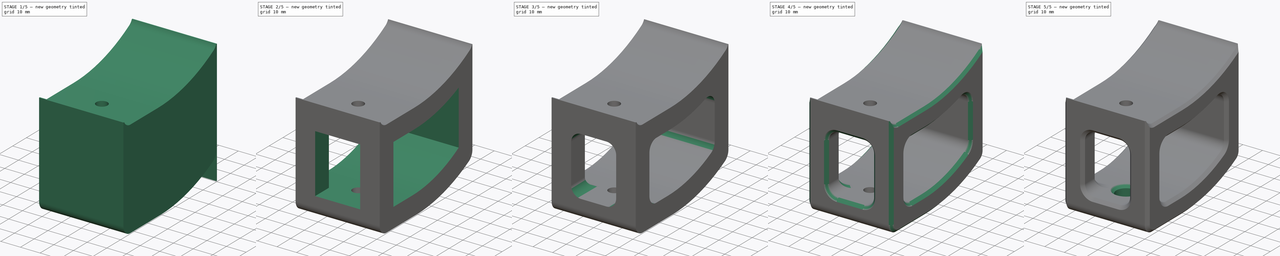
[diagram: build sequence overview — one tinted view per stage of 5, left to right]
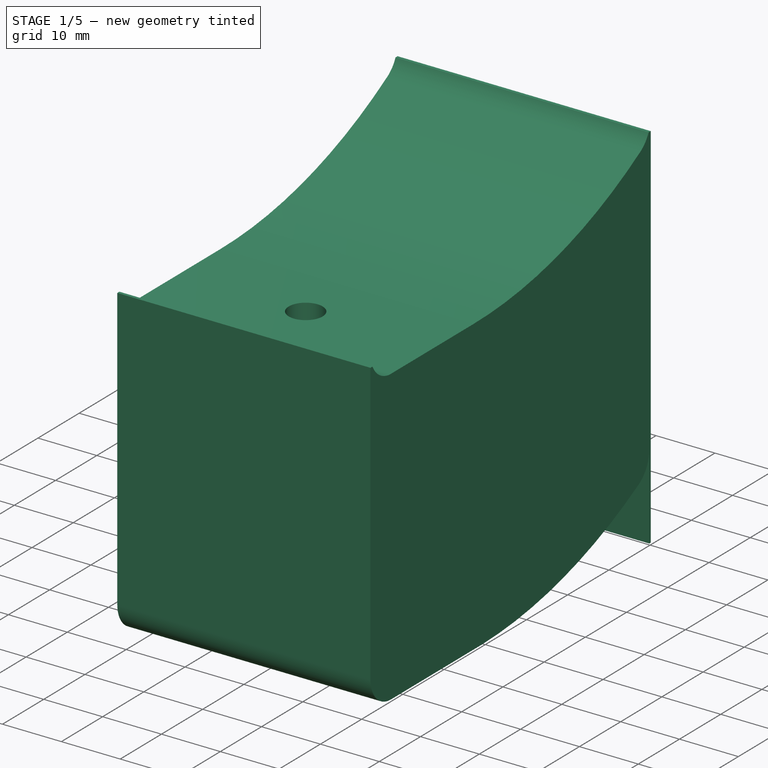
[diagram: stage 1 of 5 — iso view after this stage's code; geometry added in this stage tinted green]
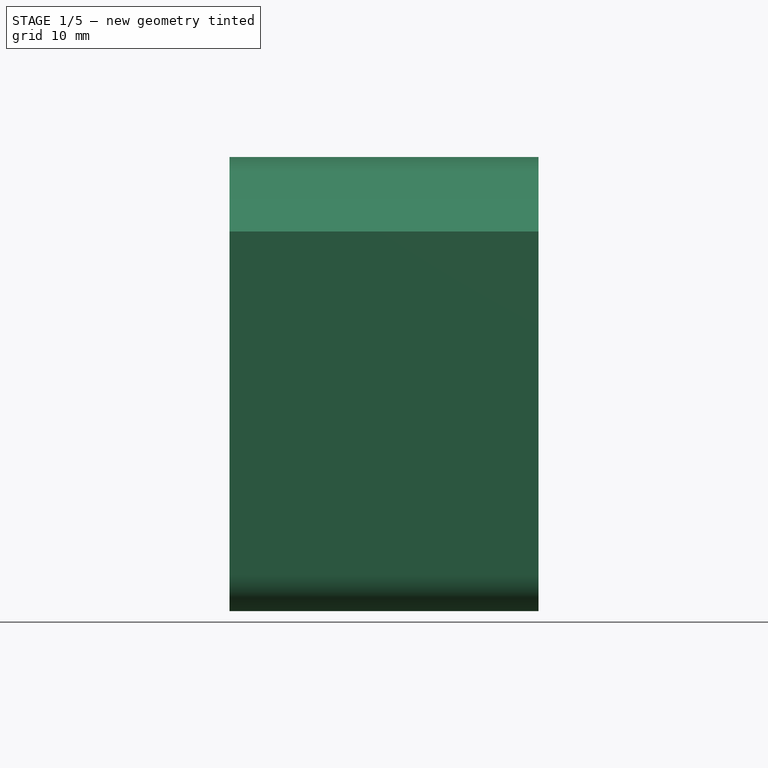
[diagram: stage 1 of 5 — front view after this stage's code; geometry added in this stage tinted green]
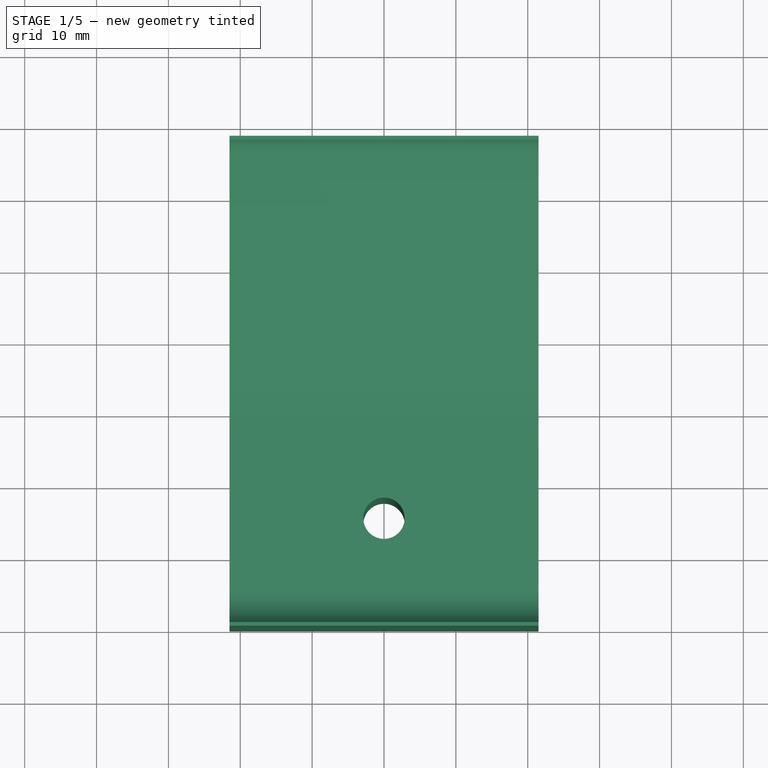
[diagram: stage 1 of 5 — top view after this stage's code; geometry added in this stage tinted green]
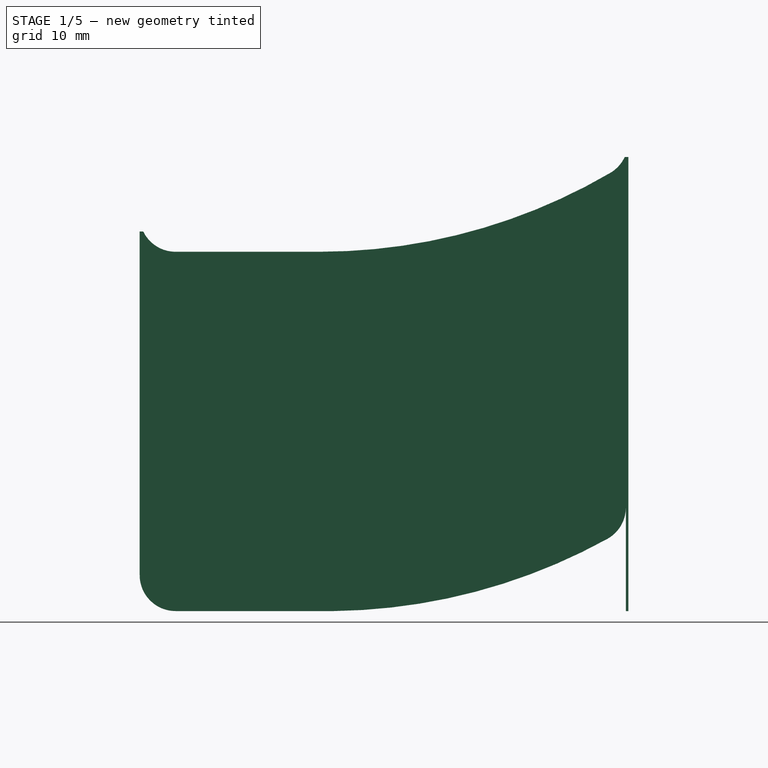
[diagram: stage 1 of 5 — right view after this stage's code; geometry added in this stage tinted green]
FCSTD DOCUMENT  (FreeCAD 0.20R29603 (Git))
Label: back-leg-extension
License: Other
objects: Sketcher::SketchObject×8, PartDesign::Pocket×8, PartDesign::Chamfer×4, PartDesign::Plane×2, PartDesign::Fillet×2, PartDesign::Hole×2, PartDesign::Pad×1, PartDesign::Body×1
note: 45 computed .brp shape members not serialized (recipe doc carries the construction recipe); baked Part::Feature solids carry a one-line shape summary decoded from their .brp

FEATURE [Sketcher::SketchObject] Sketch
  FullyConstrained = true
  MapMode = 5
  Support = -> [XY_Plane]
  sketch-geometry (4):
    g0: LineSegment StartX=-21.5 StartY=0 StartZ=0 EndX=21.5 EndY=0 EndZ=0
    g1: LineSegment StartX=21.5 StartY=0 StartZ=0 EndX=21.5 EndY=68 EndZ=0
    g2: LineSegment StartX=21.5 StartY=68 StartZ=0 EndX=-21.5 EndY=68 EndZ=0
    g3: LineSegment StartX=-21.5 StartY=68 StartZ=0 EndX=-21.5 EndY=0 EndZ=0
  constraints (11):
    c: Coincident(g0,g1)
    c: Coincident(g1,g2)
    c: Coincident(g2,g3)
    c: Coincident(g3,g0)
    c: Horizontal(g2)
    c: Vertical(g1)
    c: Vertical(g3)
    c: PointOnObject(g0,g-1)
    c: Symmetric(g0,g0,g-2)
    c: DistanceX(g2,g2) = 43
    c: DistanceY(g3,g3) = 68
FEATURE [Sketcher::SketchObject] Sketch001
  ExternalGeometry = -> [Sketch]
  FullyConstrained = true
  MapMode = 5
  Placement = pos=(0,0,0) rot=(0.57735,0.57735,0.57735;2.0944rad)
  Support = -> [YZ_Plane]
  sketch-geometry (16):
    g0: LineSegment StartX=0 StartY=0 StartZ=0 EndX=25.0002 EndY=4.7e-15 EndZ=0
    g1: LineSegment StartX=68 StartY=1.29e-14 StartZ=0 EndX=68 EndY=13.197 EndZ=0
    g2: LineSegment StartX=68 StartY=1.29e-14 StartZ=0 EndX=68 EndY=-50 EndZ=0
    g3: LineSegment StartX=68 StartY=-50 StartZ=0 EndX=0 EndY=-50 EndZ=0
    g4: LineSegment StartX=0 StartY=-50 StartZ=0 EndX=0 EndY=2.821 EndZ=0
    g5: LineSegment StartX=5.00022 StartY=9e-16 StartZ=0 EndX=25.0002 EndY=0 EndZ=0
    g6: ArcOfCircle CenterX=25.0002 CenterY=80.1544 CenterZ=0 NormalX=0 NormalY=0 NormalZ=1 AngleXU=0 Radius=80.1544 StartAngle=4.71239 EndAngle=5.24187
    g7: ArcOfCircle CenterX=62.9596 CenterY=15.2909 CenterZ=0 NormalX=0 NormalY=0 NormalZ=1 AngleXU=0 Radius=5 StartAngle=5.24187 EndAngle=5.85108
    g8: ArcOfCircle CenterX=5.00022 CenterY=5 CenterZ=0 NormalX=0 NormalY=0 NormalZ=1 AngleXU=0 Radius=5 StartAngle=3.59252 EndAngle=4.71239
    g9: LineSegment StartX=5.00022 StartY=9e-16 StartZ=0 EndX=5.00022 EndY=5 EndZ=0
    g10: LineSegment StartX=0 StartY=5 StartZ=0 EndX=5.00022 EndY=5 EndZ=0
    g11: LineSegment StartX=68 StartY=15.3 StartZ=0 EndX=65.485 EndY=15.3 EndZ=0
    g12: LineSegment StartX=65.485 StartY=10.9756 StartZ=0 EndX=65.485 EndY=15.3 EndZ=0
    g13: LineSegment StartX=67.5 StartY=13.197 StartZ=0 EndX=68 EndY=13.197 EndZ=0
    g14: LineSegment StartX=0.5 StartY=2.821 StartZ=0 EndX=0 EndY=2.821 EndZ=0
    g15: LineSegment StartX=68 StartY=13.197 StartZ=0 EndX=68 EndY=15.3 EndZ=0
  constraints (47):
    c: Coincident(g0,g-1)
    c: Coincident(g1,g-3)
    c: Vertical(g1)
    c: Coincident(g2,g-3)
    c: Vertical(g2)
    c: Coincident(g3,g2)
    c: PointOnObject(g3,g-2)
    c: Horizontal(g3)
    c: Coincident(g4,g3)
    c: PointOnObject(g10,g-2)
    c: PointOnObject(g5,g0)
    c: PointOnObject(g5,g0)
    c: Coincident(g6,g5)
    c: Coincident(g8,g5)
    c: Diameter(g7) = 10
    c: Diameter(g8) = 10
    c: Coincident(g9,g5)
    c: Coincident(g9,g8)
    c: Vertical(g9)
    c: Coincident(g10,g8)
    c: Horizontal(g10)
    c: Horizontal(g11)
    c: Coincident(g12,g6)
    c: Vertical(g12)
    c: Coincident(g11,g12)
    c: DistanceY(g1,g11) = 15.3
    c: PointOnObject(g0,g6)
    c: Tangent(g0,g-3)
    c: DistanceX(g5,g0) = 20
    c: Tangent(g7,g6) = -1.5708
    c: Tangent(g-3,g6)
    c: DistanceY(g2,g2) = 50
    c: Horizontal(g13)
    c: Horizontal(g14)
    c: Equal(g14,g13)
    c: Distance(g13) = 0.5
    c: Coincident(g8,g14)
    c: Coincident(g4,g14)
    c: Coincident(g7,g13)
    c: Coincident(g1,g13)
    c: Coincident(g15,g1)
    c: Coincident(g15,g11)
    c: Vertical(g15)
    c: DistanceY(g1,g11) = 2.103
    c: DistanceY(g4,g10) = 2.179
    c: Vertical(g4)
    c: DistanceX(g11,g11) = 2.515
FEATURE [PartDesign::Pad] Pad
  Direction = (1,-2e-16,3e-16)
  Length = 21.5
  Length2 = 21.5
  Placement = pos=(0,0,0) rot=(0.57735,0.57735,0.57735;2.0944rad)
  Profile = -> Sketch001
  ReferenceAxis = -> Sketch001 [N_Axis]
  Type = 4
FEATURE [Sketcher::SketchObject] Sketch002
  FullyConstrained = true
  MapMode = 5
  Placement = pos=(0,0,1e-15) rot=(0,0,-1;1.5708rad)
  sketch-geometry (1):
    g0: Circle CenterX=-15 CenterY=0 CenterZ=0 NormalX=0 NormalY=0 NormalZ=1 AngleXU=0 Radius=2.875
  constraints (3):
    c: PointOnObject(g0,g-1)
    c: DistanceX(g0,g-1) = 15
    c: Diameter(g0) = 5.75
FEATURE [PartDesign::Pocket] Pocket
  BaseFeature = -> Pad
  Direction = (3e-16,-5e-16,-1)
  Length = 5
  Length2 = 5
  Placement = pos=(0,0,0) rot=(0.57735,0.57735,0.57735;2.0944rad)
  Profile = -> Sketch002
  ReferenceAxis = -> Sketch002 [N_Axis]
  Type = 1
FEATURE [Sketcher::SketchObject] Sketch006
  AttachmentOffset = pos=(0,-50,0) rot=(0,0,1;0rad)
  FullyConstrained = false
  MapMode = 5
  Placement = pos=(1.11e-14,-1.11e-14,-50) rot=(0.57735,0.57735,0.57735;2.0944rad)
  Support = -> [YZ_Plane]
  sketch-geometry (13):
    g0: LineSegment StartX=0 StartY=0 StartZ=0 EndX=25 EndY=0 EndZ=0
    g1: LineSegment StartX=67.6541 StartY=4.95487e-07 StartZ=0 EndX=67.6541 EndY=-50 EndZ=0
    g2: LineSegment StartX=67.6541 StartY=-50 StartZ=0 EndX=0 EndY=-50 EndZ=0
    g3: LineSegment StartX=0 StartY=-50 StartZ=0 EndX=0 EndY=2.821 EndZ=0
    g4: LineSegment StartX=5 StartY=0 StartZ=0 EndX=25 EndY=0 EndZ=0
    g5: ArcOfCircle CenterX=26.0308 CenterY=80.8839 CenterZ=0 NormalX=0 NormalY=0 NormalZ=1 AngleXU=0 Radius=80.8905 StartAngle=4.69965 EndAngle=5.21599
    g6: ArcOfCircle CenterX=62.6541 CenterY=14.4151 CenterZ=0 NormalX=0 NormalY=0 NormalZ=1 AngleXU=0 Radius=5 StartAngle=5.21599 EndAngle=6.28319
    g7: ArcOfCircle CenterX=5 CenterY=5 CenterZ=0 NormalX=0 NormalY=0 NormalZ=1 AngleXU=0 Radius=5 StartAngle=3.14159 EndAngle=4.71239
    g8: LineSegment StartX=5 StartY=0 StartZ=0 EndX=5 EndY=5 EndZ=0
    g9: LineSegment StartX=0 StartY=5 StartZ=0 EndX=5 EndY=5 EndZ=0
    g10: LineSegment StartX=67.6541 StartY=14.4151 StartZ=0 EndX=67.6541 EndY=4.95487e-07 EndZ=0
    g11: LineSegment StartX=0 StartY=2.821 StartZ=0 EndX=0 EndY=5 EndZ=0
    g12: LineSegment StartX=5 StartY=0 StartZ=0 EndX=25 EndY=0 EndZ=0
  constraints (35):
    c: Coincident(g0,g-1)
    c: Vertical(g1)
    c: Coincident(g2,g1)
    c: PointOnObject(g2,g-2)
    c: Horizontal(g2)
    c: Coincident(g3,g2)
    c: PointOnObject(g9,g-2)
    c: PointOnObject(g4,g0)
    c: PointOnObject(g4,g0)
    c: Coincident(g5,g4)
    c: Coincident(g7,g4)
    c: Diameter(g6) = 10
    c: Diameter(g7) = 10
    c: Coincident(g8,g4)
    c: Coincident(g8,g7)
    c: Vertical(g8)
    c: Coincident(g9,g7)
    c: Horizontal(g9)
    c: DistanceX(g4,g0) = 20
    c: Tangent(g6,g5) = -1.5708
    c: DistanceY(g1,g1) = 50
    c: DistanceY(g3,g9) = 2.179
    c: Vertical(g3)
    c: Coincident(g7,g9)
    c: Coincident(g10,g6)
    c: Coincident(g10,g1)
    c: Vertical(g10)
    c: Tangent(g10,g6)
    c: Horizontal(g4)
    c: Coincident(g0,g4)
    c: Horizontal(g0)
    c: Coincident(g11,g3)
    c: Coincident(g11,g7)
    c: Coincident(g12,g7)
    c: Coincident(g12,g5)
FEATURE [PartDesign::Pocket] Pocket002
  BaseFeature = -> Pocket
  Direction = (-1,2e-16,-3e-16)
  Length = 5
  Length2 = 5
  Midplane = true
  Placement = pos=(0,0,0) rot=(0.57735,0.57735,0.57735;2.0944rad)
  Profile = -> Sketch006
  ReferenceAxis = -> Sketch006 [N_Axis]
  Type = 1
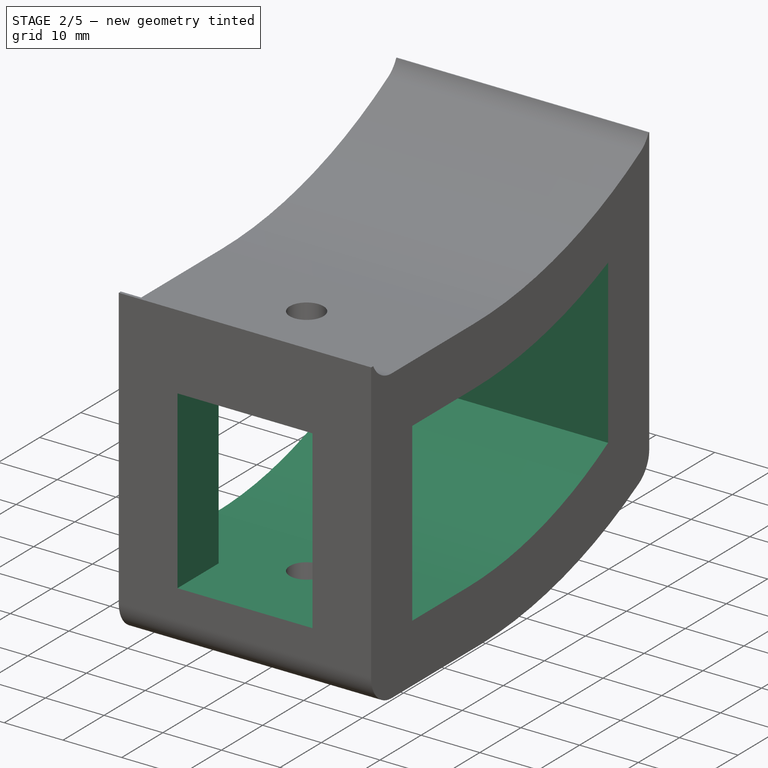
[diagram: stage 2 of 5 — iso view after this stage's code; geometry added in this stage tinted green]
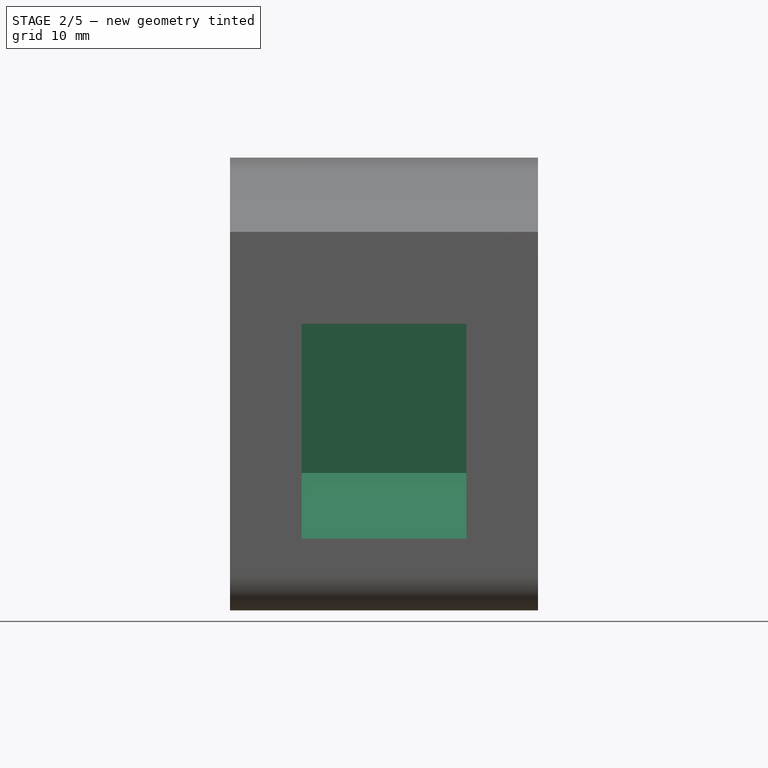
[diagram: stage 2 of 5 — front view after this stage's code; geometry added in this stage tinted green]
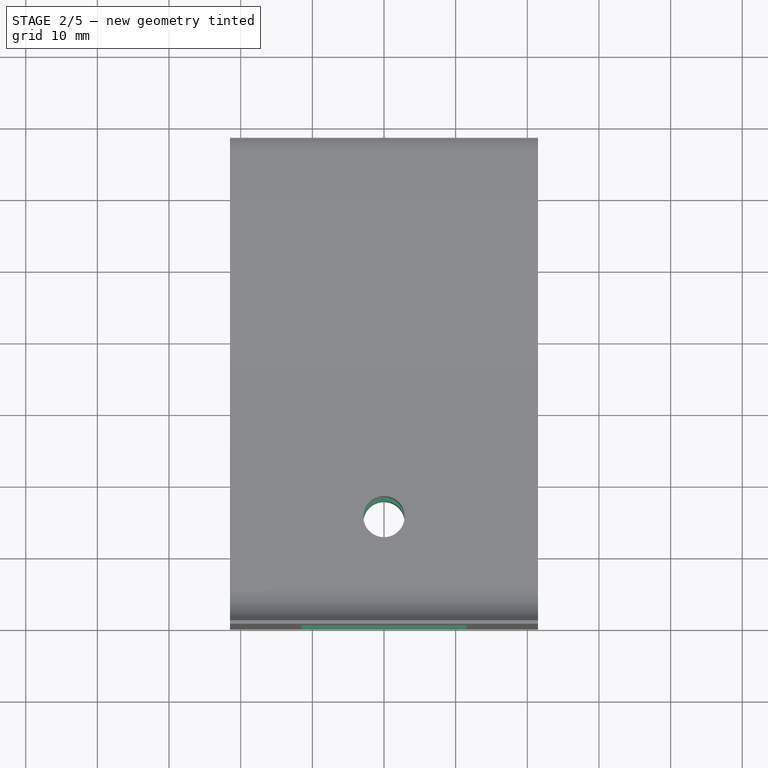
[diagram: stage 2 of 5 — top view after this stage's code; geometry added in this stage tinted green]
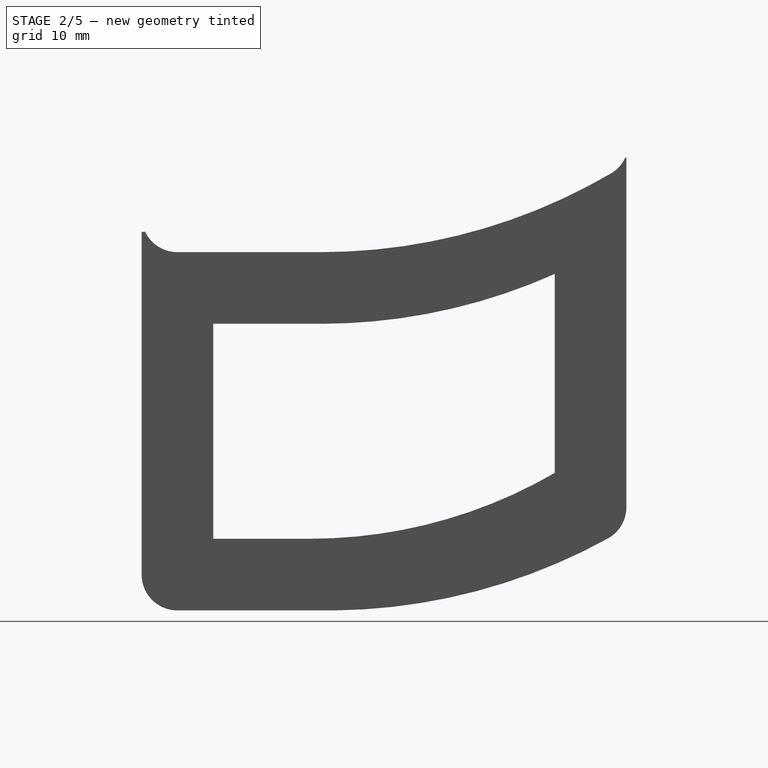
[diagram: stage 2 of 5 — right view after this stage's code; geometry added in this stage tinted green]
FEATURE [PartDesign::Pocket] Pocket003
  BaseFeature = -> Pocket002
  Direction = (4e-16,1,-2e-16)
  Length = 5
  Length2 = 5
  Placement = pos=(0,0,0) rot=(0.57735,0.57735,0.57735;2.0944rad)
  Profile = -> Pocket002 [Face14]
  Type = 0
FEATURE [PartDesign::Pocket] Pocket004
  BaseFeature = -> Pocket003
  Direction = (-3e-16,4e-16,1)
  Length = 5
  Length2 = 5
  Placement = pos=(0,0,0) rot=(0.57735,0.57735,0.57735;2.0944rad)
  Profile = -> Pocket003 [Face13]
  Type = 1
FEATURE [Sketcher::SketchObject] Sketch007
  FullyConstrained = false
  MapMode = 5
  Placement = pos=(21.5,-2.9e-14,5e-15) rot=(0.57735,0.57735,0.57735;2.0944rad)
  sketch-geometry (7):
    g0: LineSegment StartX=10 StartY=-10 StartZ=0 EndX=10 EndY=-40 EndZ=0
    g1: LineSegment StartX=57.6541 StartY=-3.04704 StartZ=0 EndX=57.6541 EndY=-30.8147 EndZ=0
    g2: LineSegment StartX=10 StartY=-40 StartZ=0 EndX=23.4772 EndY=-40 EndZ=0
    g3: LineSegment StartX=10 StartY=-10 StartZ=0 EndX=25.0002 EndY=-10 EndZ=0
    g4: ArcOfCircle CenterX=25.0002 CenterY=70.1544 CenterZ=0 NormalX=0 NormalY=0 NormalZ=1 AngleXU=0 Radius=80.1544 StartAngle=4.71239 EndAngle=5.13198
    g5: ArcOfCircle CenterX=23.4772 CenterY=28.1757 CenterZ=0 NormalX=0 NormalY=0 NormalZ=1 AngleXU=0 Radius=68.1757 StartAngle=4.71239 EndAngle=5.2375
    g6: GeomPoint X=57.6541 Y=6.95296 Z=0
  constraints (13):
    c: Vertical(g0)
    c: Vertical(g1)
    c: Coincident(g2,g0)
    c: Horizontal(g2)
    c: Coincident(g3,g0)
    c: Horizontal(g3)
    c: Coincident(g4,g1)
    c: Tangent(g4,g3) = -1.5708
    c: Coincident(g5,g1)
    c: Tangent(g5,g2) = -1.5708
    c: DistanceX(g-1,g0) = 10
    c: Vertical(g6,g1)
    c: DistanceY(g1,g6) = 10
FEATURE [PartDesign::Pocket] Pocket005
  BaseFeature = -> Pocket004
  Direction = (-1,1.2e-15,-1e-16)
  Length = 1.51
  Length2 = 5
  Placement = pos=(0,0,0) rot=(0.57735,0.57735,0.57735;2.0944rad)
  Profile = -> Sketch007
  ReferenceAxis = -> Sketch007 [N_Axis]
  Type = 1
FEATURE [PartDesign::Plane] DatumPlane
  Length = 87.2474
  MapMode = 5
  Placement = pos=(1.44e-14,10,1.1e-15) rot=(0.57735,0.57735,0.57735;4.18879rad)
  ResizeMode = 0
  Support = -> [Pocket005]
  Width = 62.2474
FEATURE [Sketcher::SketchObject] Sketch009
  ExternalGeometry = -> [Pocket005]
  FullyConstrained = true
  MapMode = 5
  Placement = pos=(1.44e-14,10,1.1e-15) rot=(0.57735,0.57735,0.57735;4.18879rad)
  Support = -> [DatumPlane]
  sketch-geometry (5):
    g0: LineSegment StartX=-10 StartY=-11.5 StartZ=0 EndX=-10 EndY=11.5 EndZ=0
    g1: LineSegment StartX=-10 StartY=11.5 StartZ=0 EndX=-40 EndY=11.5 EndZ=0
    g2: LineSegment StartX=-40 StartY=11.5 StartZ=0 EndX=-40 EndY=-11.5 EndZ=0
    g3: LineSegment StartX=-40 StartY=-11.5 StartZ=0 EndX=-10 EndY=-11.5 EndZ=0
    g4: GeomPoint X=-25 Y=0 Z=0
  constraints (13):
    c: Coincident(g0,g1)
    c: Coincident(g1,g2)
    c: Coincident(g2,g3)
    c: Coincident(g3,g0)
    c: Horizontal(g1)
    c: Horizontal(g3)
    c: Vertical(g0)
    c: Vertical(g2)
    c: Symmetric(g1,g0,g4)
    c: PointOnObject(g4,g-1)
    c: Distance(g0) = 23
    c: PointOnObject(g1,g-3)
    c: PointOnObject(g0,g-4)
FEATURE [PartDesign::Pocket] Pocket006
  BaseFeature = -> Pocket005
  Direction = (-1.3e-15,-1,0)
  Length = 5
  Length2 = 5
  Placement = pos=(0,0,0) rot=(0.57735,0.57735,0.57735;2.0944rad)
  Profile = -> Sketch009
  ReferenceAxis = -> Sketch009 [N_Axis]
  Type = 1
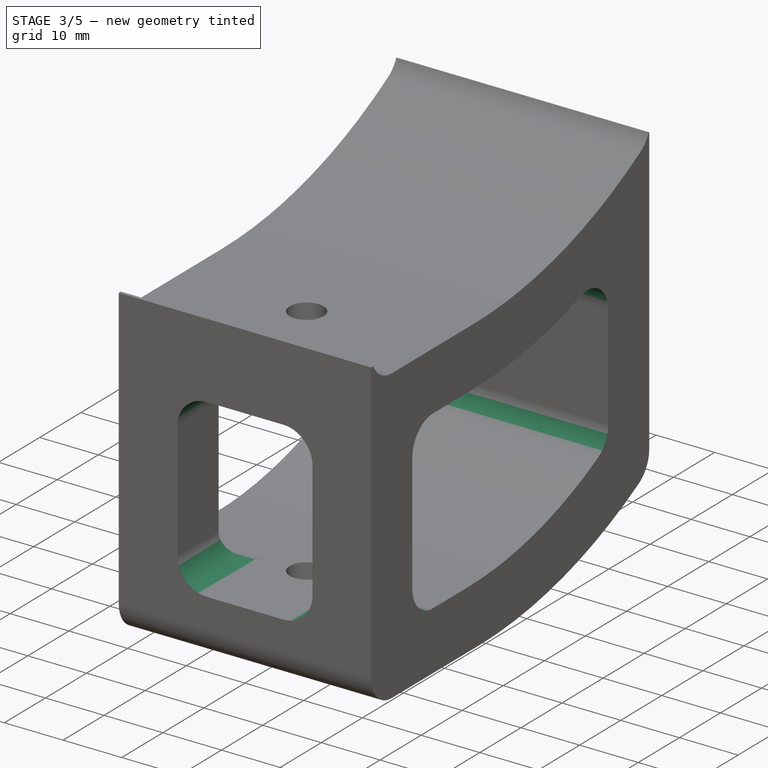
[diagram: stage 3 of 5 — iso view after this stage's code; geometry added in this stage tinted green]
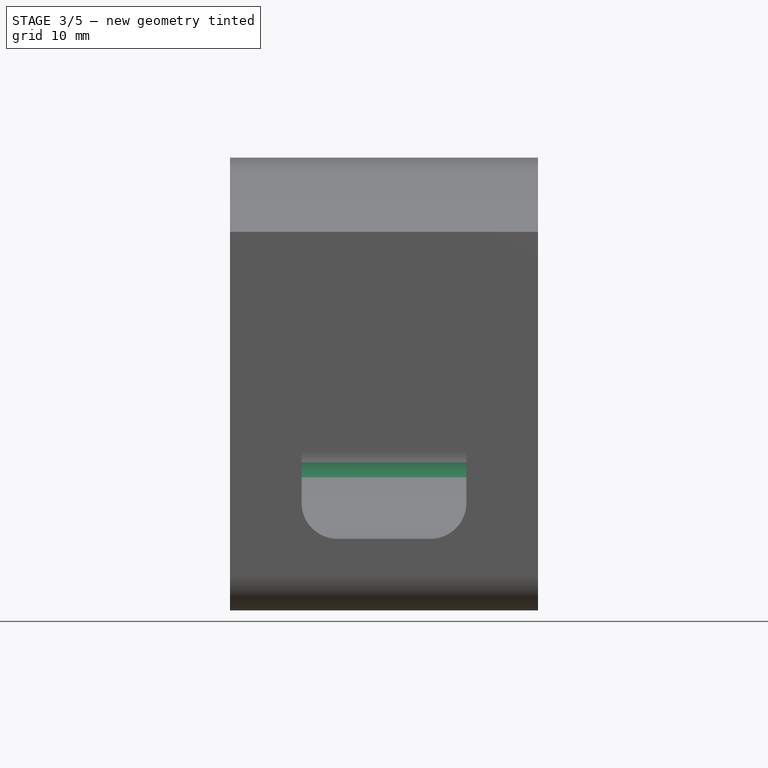
[diagram: stage 3 of 5 — front view after this stage's code; geometry added in this stage tinted green]
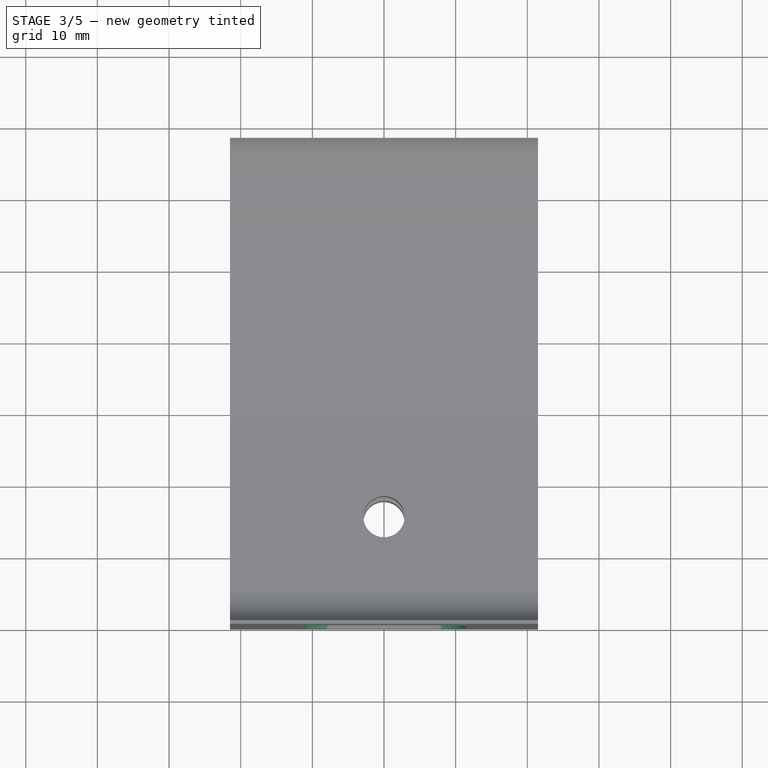
[diagram: stage 3 of 5 — top view after this stage's code; geometry added in this stage tinted green]
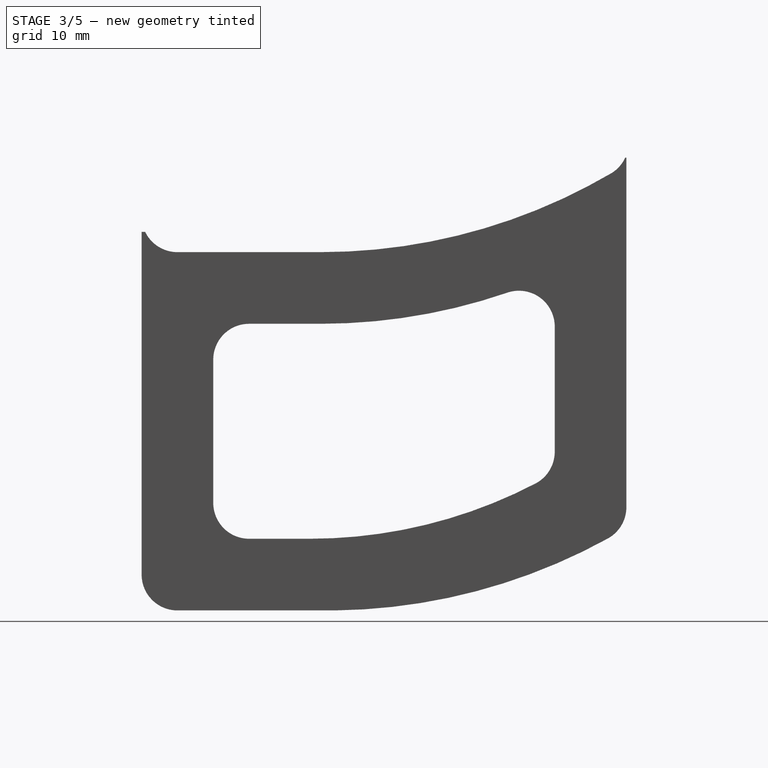
[diagram: stage 3 of 5 — right view after this stage's code; geometry added in this stage tinted green]
FEATURE [PartDesign::Plane] DatumPlane001
  Length = 106.267
  MapMode = 5
  Placement = pos=(1.4e-14,-2.2e-14,-50) rot=(0.707107,0.707107,0;3.14159rad)
  ResizeMode = 0
  Support = -> [Pocket006]
  Width = 63.6128
FEATURE [Sketcher::SketchObject] Sketch008
  FullyConstrained = false
  MapMode = 5
  Placement = pos=(1.4e-14,-2.2e-14,-50) rot=(0.707107,0.707107,0;3.14159rad)
  Support = -> [DatumPlane001]
  sketch-geometry (8):
    g0: LineSegment StartX=15 StartY=-7.8e-15 StartZ=0 EndX=15 EndY=-21.5 EndZ=0
    g1: LineSegment StartX=15 StartY=-7.8e-15 StartZ=0 EndX=15 EndY=21.5 EndZ=0
    g2: GeomPoint X=15 Y=13.91 Z=0
    g3: GeomPoint X=15 Y=-13.91 Z=0
    g4: Circle CenterX=15 CenterY=-13.91 CenterZ=0 NormalX=0 NormalY=0 NormalZ=1 AngleXU=0 Radius=5
    g5: Circle CenterX=15 CenterY=13.91 CenterZ=0 NormalX=0 NormalY=0 NormalZ=1 AngleXU=0 Radius=5
    g6: GeomPoint X=15 Y=-6.32 Z=0
    g7: LineSegment StartX=15 StartY=-13.91 StartZ=0 EndX=20 EndY=-13.91 EndZ=0
  constraints (15):
    c: Vertical(g0)
    c: Coincident(g1,g0)
    c: Vertical(g1)
    c: PointOnObject(g2,g1)
    c: Symmetric(g3,g2,g-1)
    c: DistanceY(g0,g1) = 21.5
    c: DistanceY(g3,g2) = 27.82
    c: Coincident(g4,g3)
    c: Coincident(g5,g2)
    c: Equal(g5,g4)
    c: Diameter(g5) = 10
    c: PointOnObject(g6,g0)
    c: Coincident(g7,g4)
    c: PointOnObject(g7,g4)
    c: Symmetric(g6,g0,g7)
FEATURE [PartDesign::Pocket] Pocket007
  BaseFeature = -> Pocket006
  Direction = (-5e-16,4e-16,1)
  Length = 0.75
  Length2 = 5
  Placement = pos=(0,0,0) rot=(0.57735,0.57735,0.57735;2.0944rad)
  Profile = -> Sketch008
  ReferenceAxis = -> Sketch008 [N_Axis]
  Type = 0
FEATURE [PartDesign::Fillet] Fillet
  Base = -> Pocket007 [Edge74,Edge73,Edge56,Edge54,Edge52,Edge51]
  BaseFeature = -> Pocket007
  Placement = pos=(0,0,0) rot=(0.57735,0.57735,0.57735;2.0944rad)
  Radius = 5
  SupportTransform = false
  UseAllEdges = false
FEATURE [PartDesign::Fillet] Fillet001
  Base = -> Fillet [Edge77,Edge72,Edge76,Edge73]
  BaseFeature = -> Fillet
  Placement = pos=(0,0,0) rot=(0.57735,0.57735,0.57735;2.0944rad)
  Radius = 5
  SupportTransform = false
  UseAllEdges = false
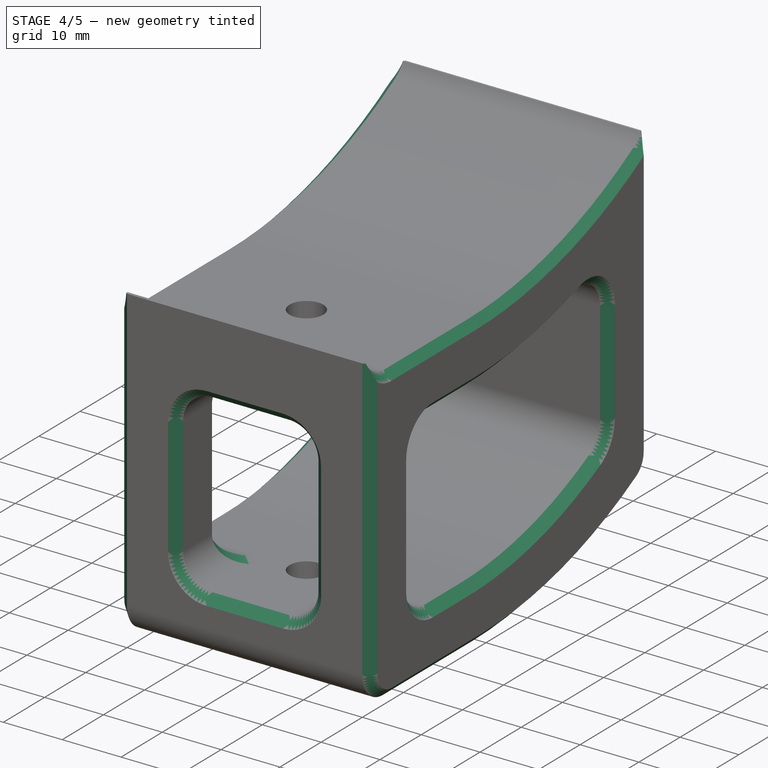
[diagram: stage 4 of 5 — iso view after this stage's code; geometry added in this stage tinted green]
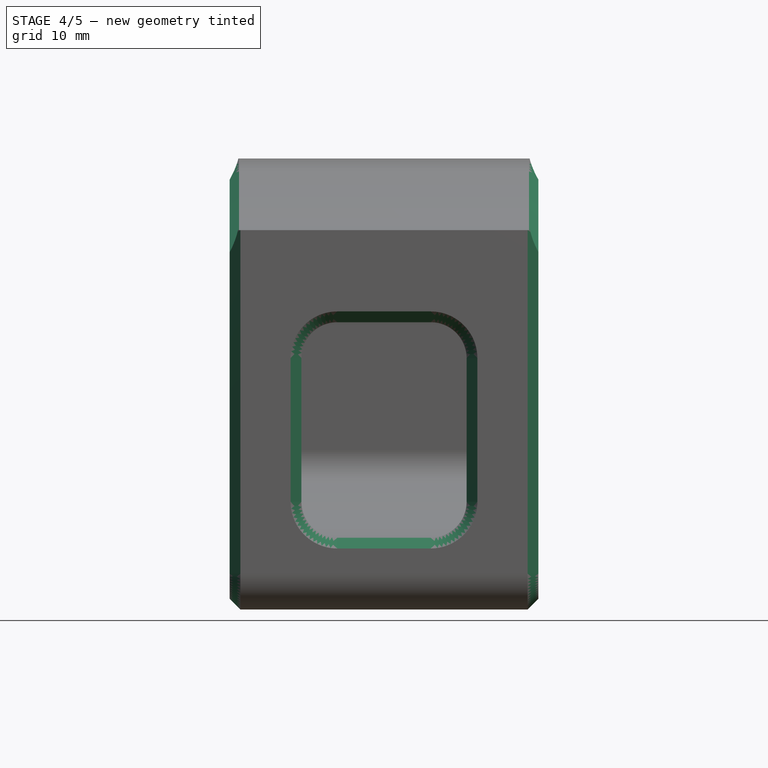
[diagram: stage 4 of 5 — front view after this stage's code; geometry added in this stage tinted green]
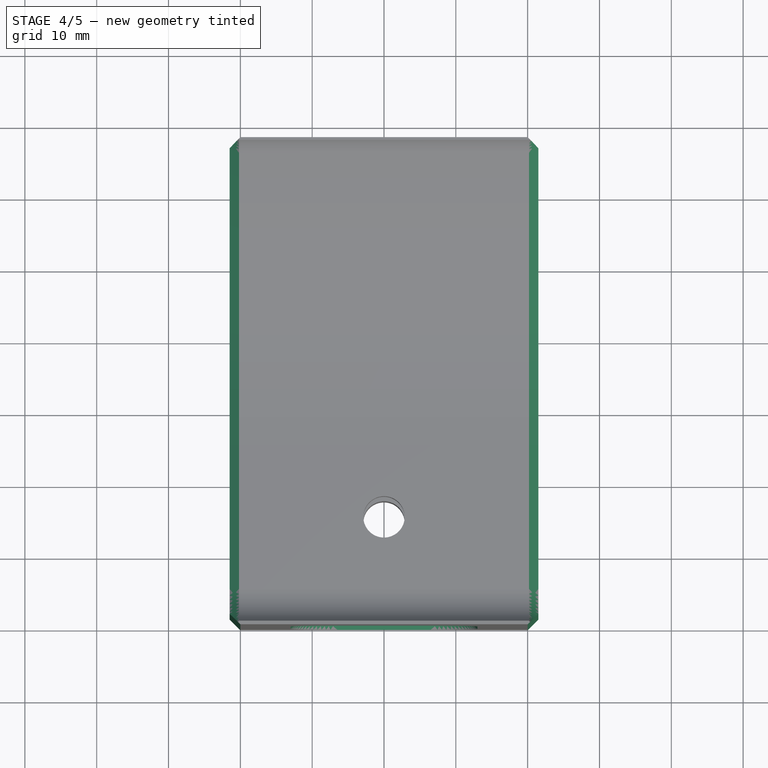
[diagram: stage 4 of 5 — top view after this stage's code; geometry added in this stage tinted green]
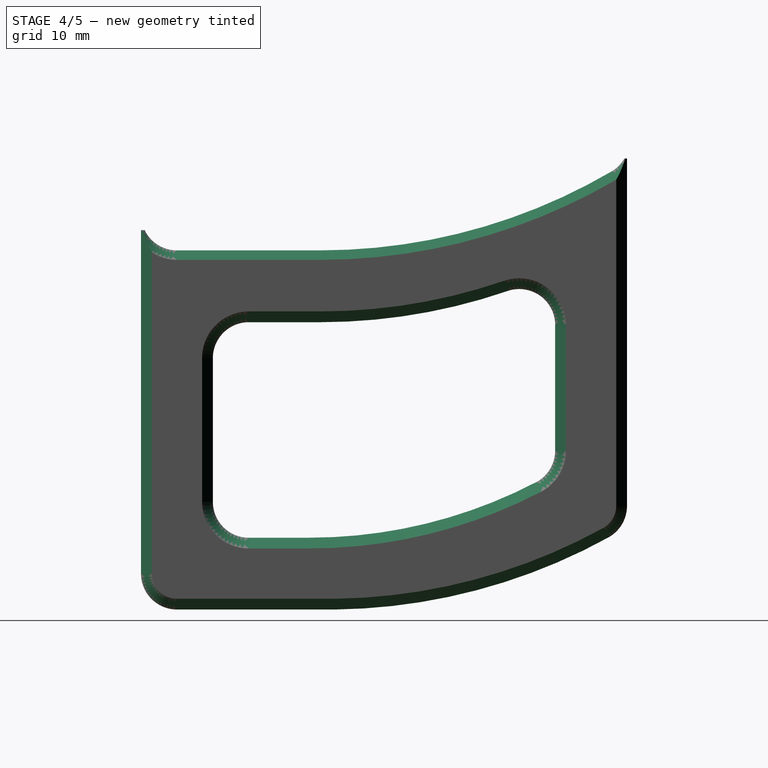
[diagram: stage 4 of 5 — right view after this stage's code; geometry added in this stage tinted green]
FEATURE [PartDesign::Chamfer] Chamfer
  Angle = 45
  Base = -> Fillet001 [Edge40,Edge24,Edge61,Edge91,Edge8,Edge72,Edge50]
  BaseFeature = -> Fillet001
  ChamferType = 0
  FlipDirection = false
  Placement = pos=(0,0,0) rot=(0.57735,0.57735,0.57735;2.0944rad)
  Size = 1.5
  Size2 = 1
  SupportTransform = false
  UseAllEdges = false
FEATURE [Sketcher::SketchObject] Sketch010
  FullyConstrained = false
  MapMode = 5
  Placement = pos=(0,0,0) rot=(0.57735,0.57735,0.57735;2.0944rad)
  Support = -> [YZ_Plane]
  sketch-geometry (5):
    g0: LineSegment StartX=72.0203 StartY=12.7928 StartZ=0 EndX=72.0203 EndY=17.2113 EndZ=0
    g1: LineSegment StartX=72.0203 StartY=17.2113 StartZ=0 EndX=64.484 EndY=17.2113 EndZ=0
    g2: LineSegment StartX=64.484 StartY=17.2113 StartZ=0 EndX=64.484 EndY=12.7928 EndZ=0
    g3: LineSegment StartX=64.484 StartY=12.7928 StartZ=0 EndX=72.0203 EndY=12.7928 EndZ=0
    g4: GeomPoint X=68.2521 Y=15.0021 Z=0
  constraints (9):
    c: Coincident(g0,g1)
    c: Coincident(g1,g2)
    c: Coincident(g2,g3)
    c: Coincident(g3,g0)
    c: Horizontal(g1)
    c: Horizontal(g3)
    c: Vertical(g0)
    c: Vertical(g2)
    c: Symmetric(g1,g0,g4)
FEATURE [PartDesign::Pocket] Pocket008
  BaseFeature = -> Chamfer
  Direction = (-1,2e-16,-3e-16)
  Length = 5
  Length2 = 5
  Midplane = true
  Placement = pos=(0,0,0) rot=(0.57735,0.57735,0.57735;2.0944rad)
  Profile = -> Sketch010
  ReferenceAxis = -> Sketch010 [N_Axis]
  Type = 1
FEATURE [PartDesign::Chamfer] Chamfer001
  Angle = 45
  Base = -> Pocket008 [Edge125,Edge147]
  BaseFeature = -> Pocket008
  ChamferType = 0
  FlipDirection = false
  Placement = pos=(0,0,0) rot=(0.57735,0.57735,0.57735;2.0944rad)
  Size = 1.32
  Size2 = 1
  SupportTransform = false
  UseAllEdges = false
FEATURE [PartDesign::Hole] Hole
  BaseFeature = -> Chamfer001
  CustomThreadClearance = 0
  Depth = 5
  DepthType = 0
  Diameter = 10
  DrillForDepth = false
  DrillPoint = 0
  DrillPointAngle = 118
  HoleCutCountersinkAngle = 90
  HoleCutCustomValues = false
  HoleCutDepth = 0
  HoleCutDiameter = 6.1
  HoleCutType = 0
  ModelThread = false
  Placement = pos=(0,0,0) rot=(0.57735,0.57735,0.57735;2.0944rad)
  Profile = -> Chamfer001 [Edge142]
  Reversed = true
  Tapered = false
  TaperedAngle = 90
  ThreadClass = 0
  ThreadDepth = 5
  ThreadDepthType = 0
  ThreadDirection = 0
  ThreadFit = 0
  ThreadSize = 0
  ThreadType = 0
  Threaded = false
  UseCustomThreadClearance = false
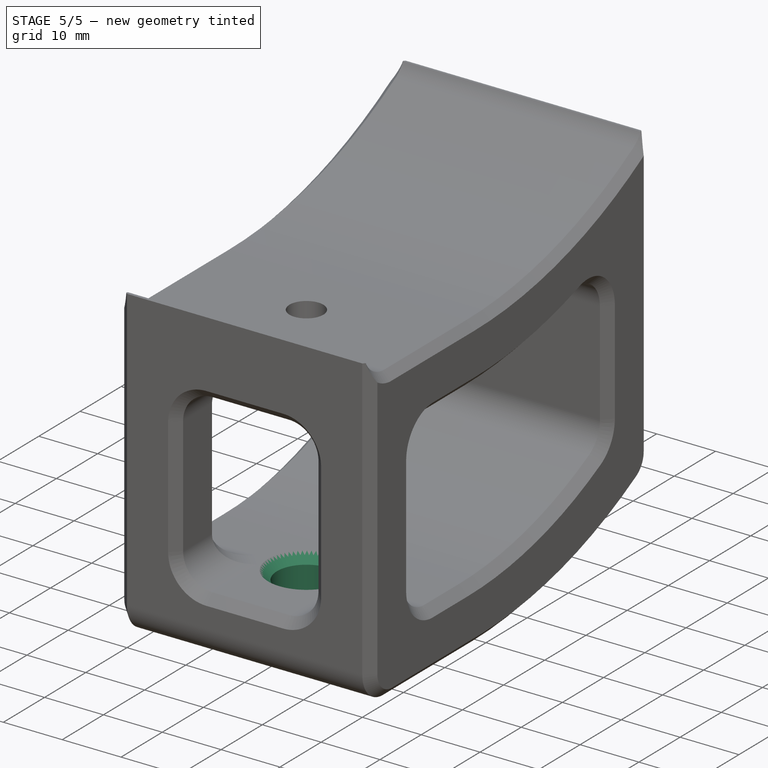
[diagram: stage 5 of 5 — iso view after this stage's code; geometry added in this stage tinted green]
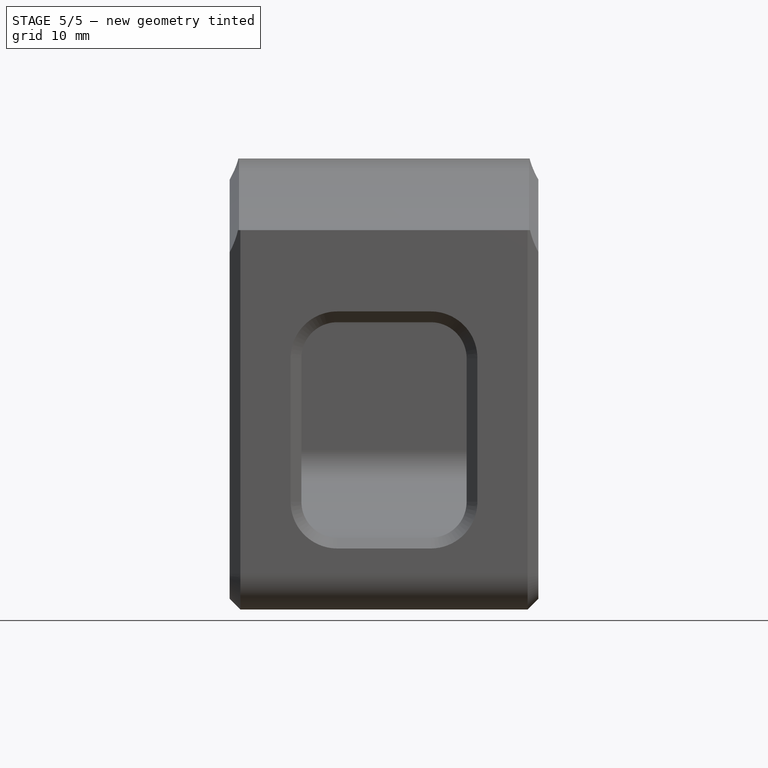
[diagram: stage 5 of 5 — front view after this stage's code; geometry added in this stage tinted green]
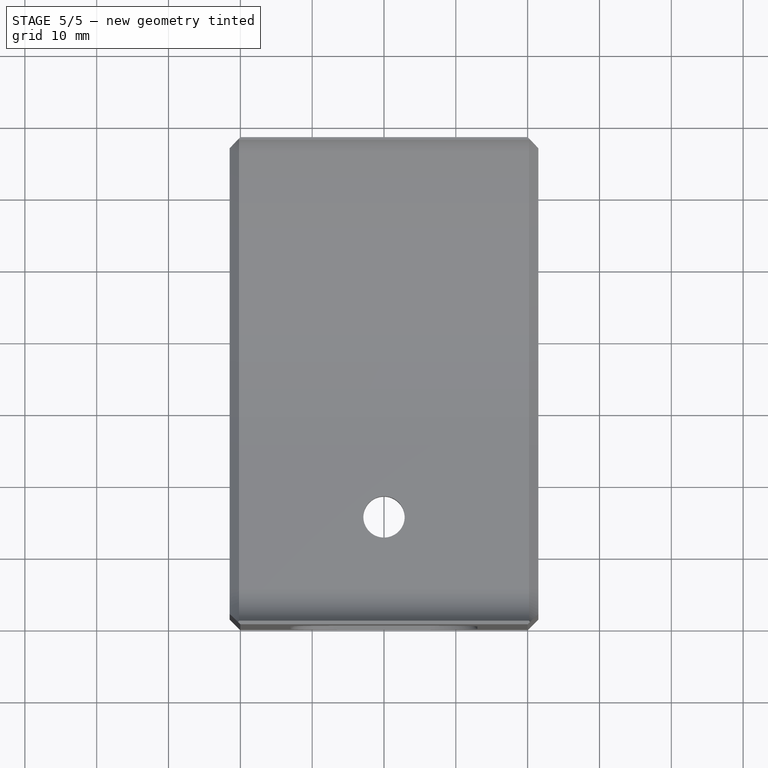
[diagram: stage 5 of 5 — top view after this stage's code; geometry added in this stage tinted green]
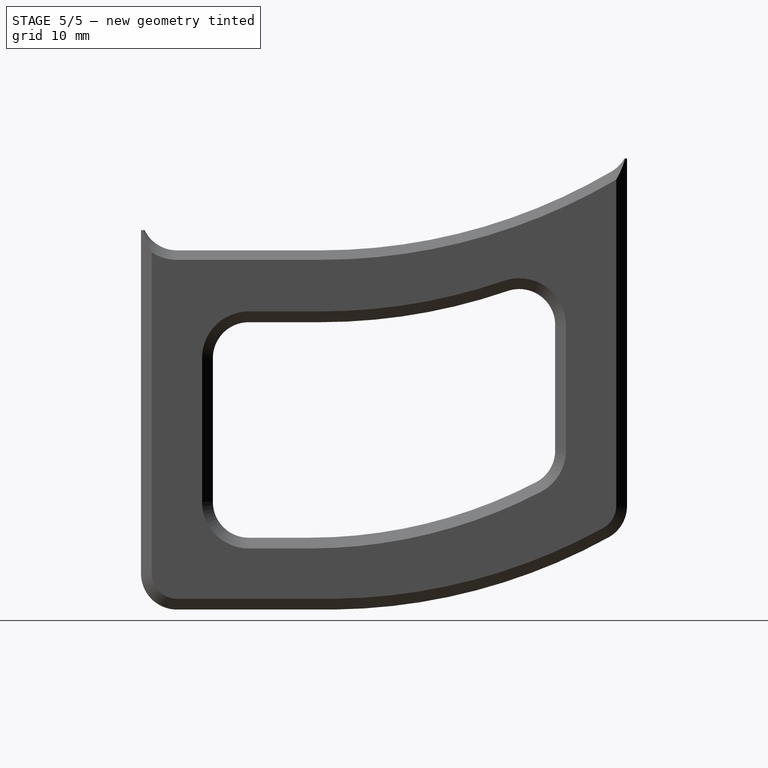
[diagram: stage 5 of 5 — right view after this stage's code; geometry added in this stage tinted green]
FEATURE [PartDesign::Chamfer] Chamfer002
  Angle = 45
  Base = -> Hole [Edge111,Edge109]
  BaseFeature = -> Hole
  ChamferType = 0
  FlipDirection = false
  Placement = pos=(0,0,0) rot=(0.57735,0.57735,0.57735;2.0944rad)
  Size = 0.74
  Size2 = 1
  SupportTransform = false
  UseAllEdges = false
FEATURE [PartDesign::Hole] Hole001
  BaseFeature = -> Chamfer002
  CustomThreadClearance = 0
  Depth = 25
  DepthType = 0
  Diameter = 10
  DrillForDepth = false
  DrillPoint = 1
  DrillPointAngle = 118
  HoleCutCountersinkAngle = 90
  HoleCutCustomValues = false
  HoleCutDepth = 0
  HoleCutDiameter = 6.1
  HoleCutType = 0
  ModelThread = false
  Placement = pos=(0,0,0) rot=(0.57735,0.57735,0.57735;2.0944rad)
  Profile = -> Chamfer002 [Edge6]
  Reversed = true
  Tapered = false
  TaperedAngle = 90
  ThreadClass = 0
  ThreadDepth = 25
  ThreadDepthType = 0
  ThreadDirection = 0
  ThreadFit = 0
  ThreadSize = 0
  ThreadType = 0
  Threaded = false
  UseCustomThreadClearance = false
FEATURE [PartDesign::Chamfer] Chamfer003
  Angle = 45
  Base = -> Hole001 [Edge6,Edge23]
  BaseFeature = -> Hole001
  ChamferType = 0
  FlipDirection = false
  Placement = pos=(0,0,0) rot=(0.57735,0.57735,0.57735;2.0944rad)
  Refine = true
  Size = 1.5
  Size2 = 1
  SupportTransform = false
  UseAllEdges = false
FEATURE [PartDesign::Body] Body
  Group = -> [Sketch,Sketch001,Pad,Sketch002,Pocket,Sketch006,Pocket002,Pocket003,Pocket004,Sketch007,Pocket005,Sketch008,Sketch009,DatumPlane,Pocket006,DatumPlane001,Pocket007,Fillet,Fillet001,Chamfer,Sketch010,Pocket008,Chamfer001,Hole,Chamfer002,Hole001,Chamfer003]
  Origin = -> Origin
  Tip = -> Chamfer003
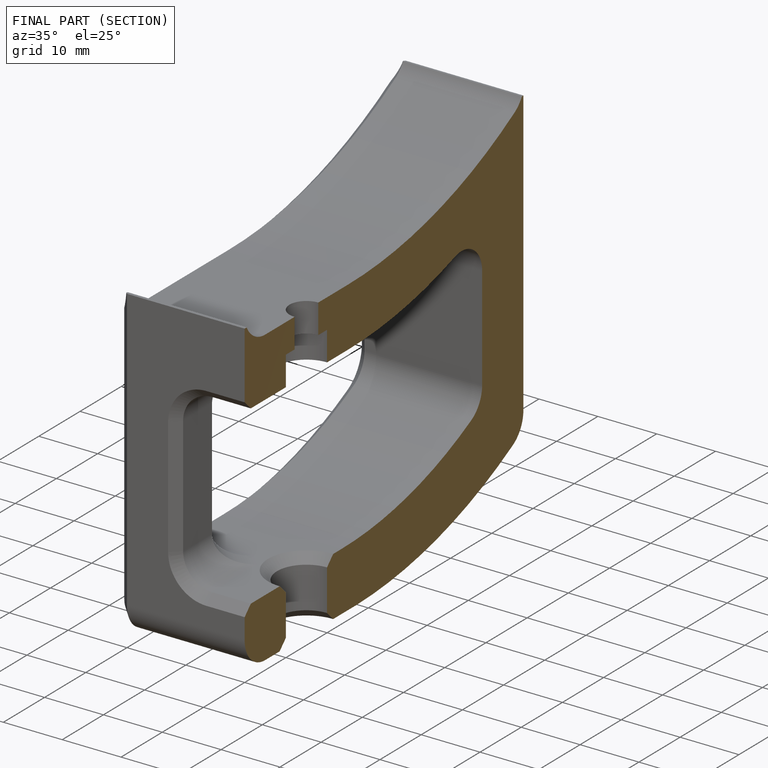
[diagram: finished part — half-section view (interior)]
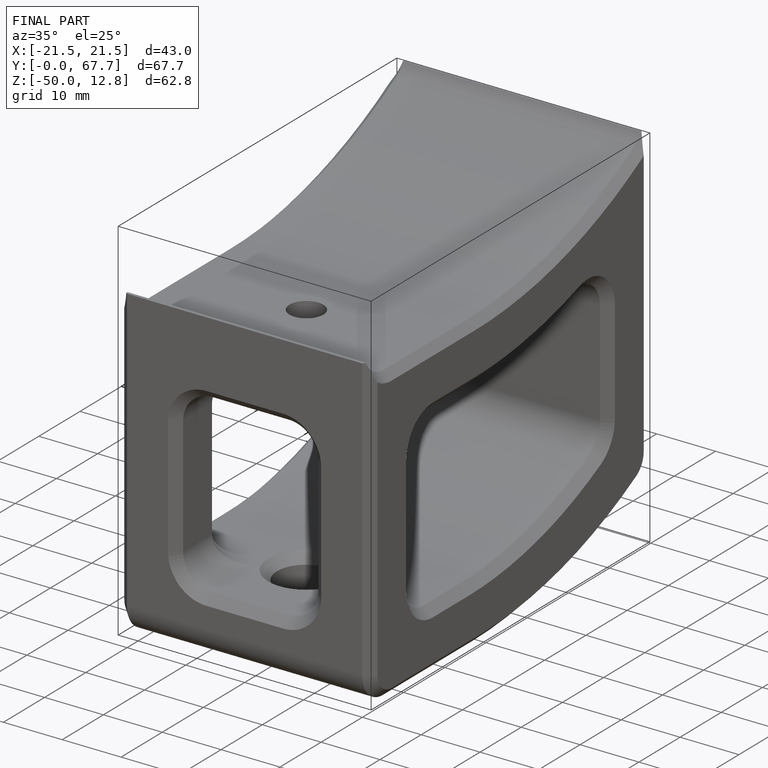
[diagram: finished part — iso view with bounding-box wireframe]
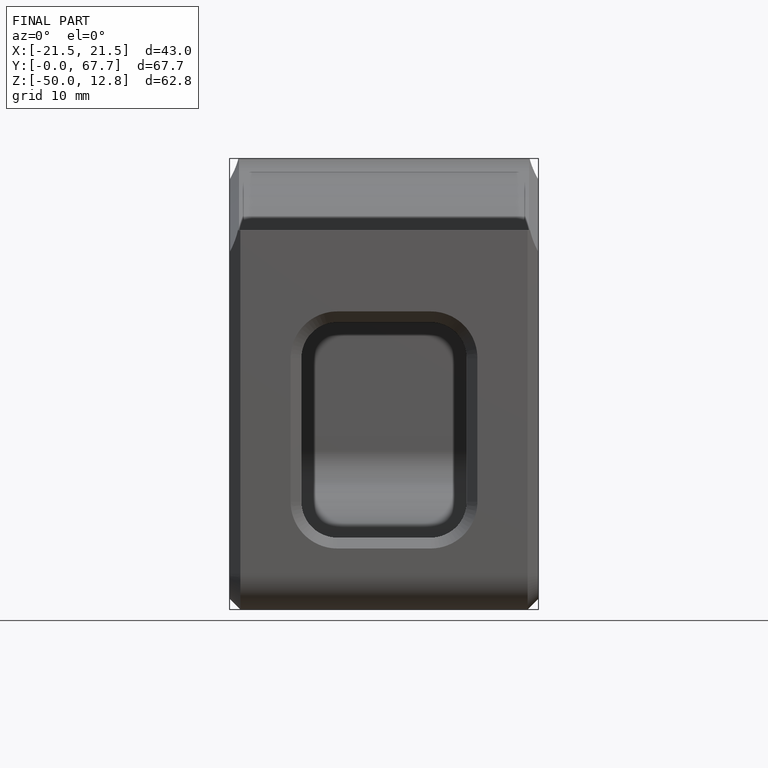
[diagram: finished part — front view with bounding-box wireframe]
